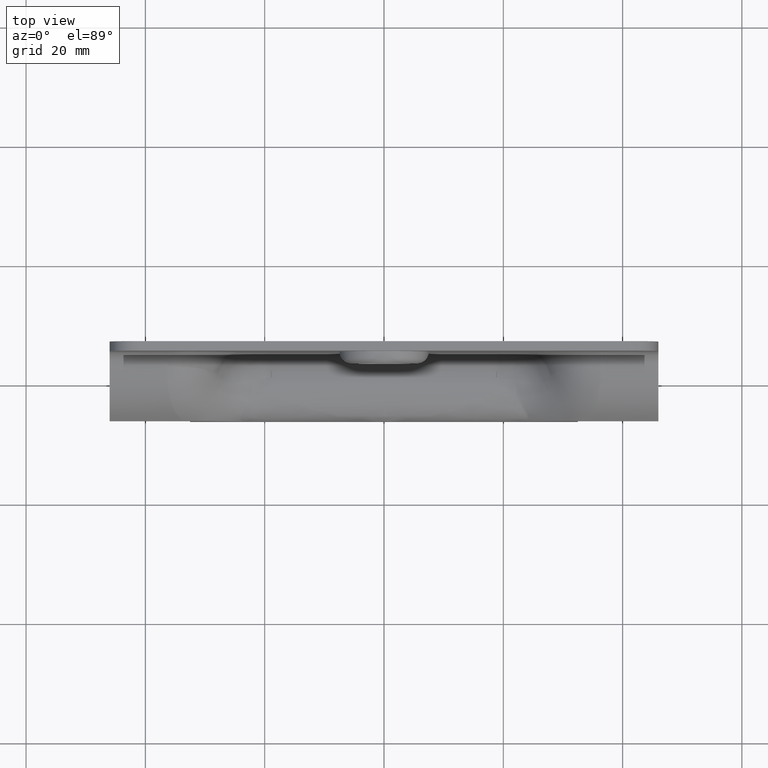
[diagram: clean part render]
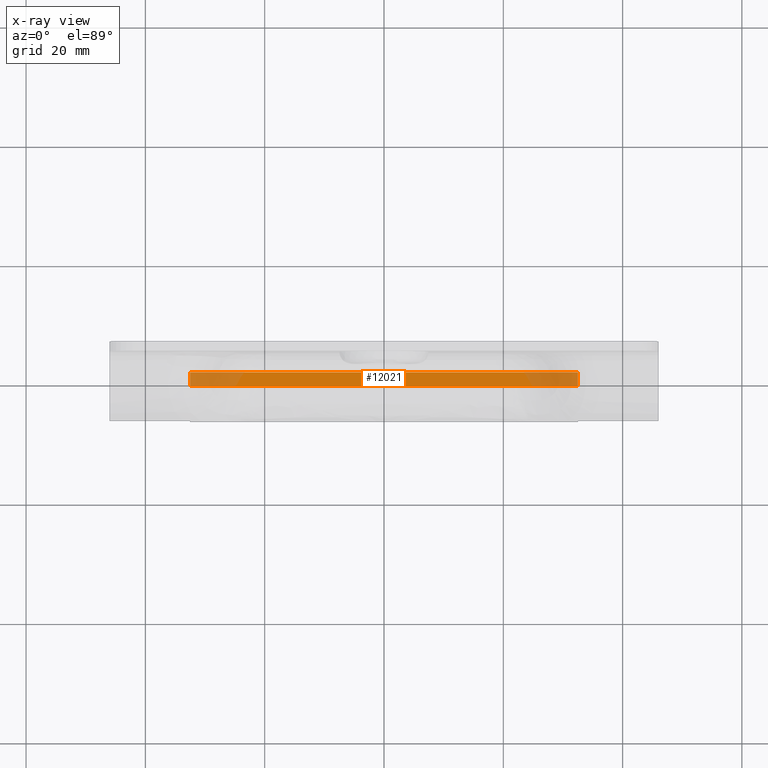
[diagram: x-ray — body ghosted, one internal face saturated and labeled with its STEP entity id]
A machine part, top view, then the same camera in x-ray: the body is ghosted and one INTERNAL B-rep face — a face not visible from any outside direction — is saturated and labeled: STEP entity #12021.
In plain terms, the highlighted face is a freeform B-spline surface patch.
Its self-contained STEP definition (entity closure, byte-faithful):
#11986=CARTESIAN_POINT('',(35.746749874017382,-0.914885017132721,-4.599999999999910));
#11987=CARTESIAN_POINT('',(-35.746751617453242,-0.914885017132721,-4.599999999999910));
#11988=CARTESIAN_POINT('',(35.746749874017382,1.614885058260314,-4.599999999999910));
#11989=CARTESIAN_POINT('',(-35.746751617453242,1.614885058260314,-4.599999999999910));
#11990=B_SPLINE_SURFACE_WITH_KNOTS('',1,1,((#11986,#11988),(#11987,#11989)),.UNSPECIFIED.,.F.,.F.,.U.,(2,2),(2,2),(0.0,71.493501491470624),(0.0,2.529770075393035),.UNSPECIFIED.);
#11991=CARTESIAN_POINT('',(-32.500000000000000,1.500000000000200,-4.599999999999910));
#11992=VERTEX_POINT('',#11991);
#11993=CARTESIAN_POINT('',(-32.500000000000000,-0.799999999999812,-4.599999999999910));
#11994=VERTEX_POINT('',#11993);
#11995=CARTESIAN_POINT('',(-32.500000000000000,1.500000000000200,-4.599999999999910));
#11996=CARTESIAN_POINT('',(-32.500000000000000,-0.799999999999812,-4.599999999999910));
#11997=QUASI_UNIFORM_CURVE('',1,(#11995,#11996),.UNSPECIFIED.,.F.,.U.);
#11998=EDGE_CURVE('',#11992,#11994,#11997,.T.);
#11999=ORIENTED_EDGE('',*,*,#11998,.T.);
#12000=CARTESIAN_POINT('',(32.500000000000000,-0.799999999999812,-4.599999999999910));
#12001=VERTEX_POINT('',#12000);
#12002=CARTESIAN_POINT('',(32.500000000000000,-0.799999999999812,-4.599999999999910));
#12003=CARTESIAN_POINT('',(-32.500000000000000,-0.799999999999812,-4.599999999999910));
#12004=QUASI_UNIFORM_CURVE('',1,(#12002,#12003),.UNSPECIFIED.,.F.,.U.);
#12005=EDGE_CURVE('',#12001,#11994,#12004,.T.);
#12006=ORIENTED_EDGE('',*,*,#12005,.F.);
#12007=CARTESIAN_POINT('',(32.500000000000000,1.500000000000200,-4.599999999999910));
#12008=VERTEX_POINT('',#12007);
#12009=CARTESIAN_POINT('',(32.500000000000000,1.500000000000200,-4.599999999999910));
#12010=CARTESIAN_POINT('',(32.500000000000000,-0.799999999999812,-4.599999999999910));
#12011=QUASI_UNIFORM_CURVE('',1,(#12009,#12010),.UNSPECIFIED.,.F.,.U.);
#12012=EDGE_CURVE('',#12008,#12001,#12011,.T.);
#12013=ORIENTED_EDGE('',*,*,#12012,.F.);
#12014=CARTESIAN_POINT('',(32.500000000000000,1.500000000000200,-4.599999999999910));
#12015=CARTESIAN_POINT('',(-32.500000000000000,1.500000000000200,-4.599999999999910));
#12016=QUASI_UNIFORM_CURVE('',1,(#12014,#12015),.UNSPECIFIED.,.F.,.U.);
#12017=EDGE_CURVE('',#12008,#11992,#12016,.T.);
#12018=ORIENTED_EDGE('',*,*,#12017,.T.);
#12019=EDGE_LOOP('',(#11999,#12006,#12013,#12018));
#12020=FACE_OUTER_BOUND('',#12019,.T.);
#12021=ADVANCED_FACE('',(#12020),#11990,.F.);